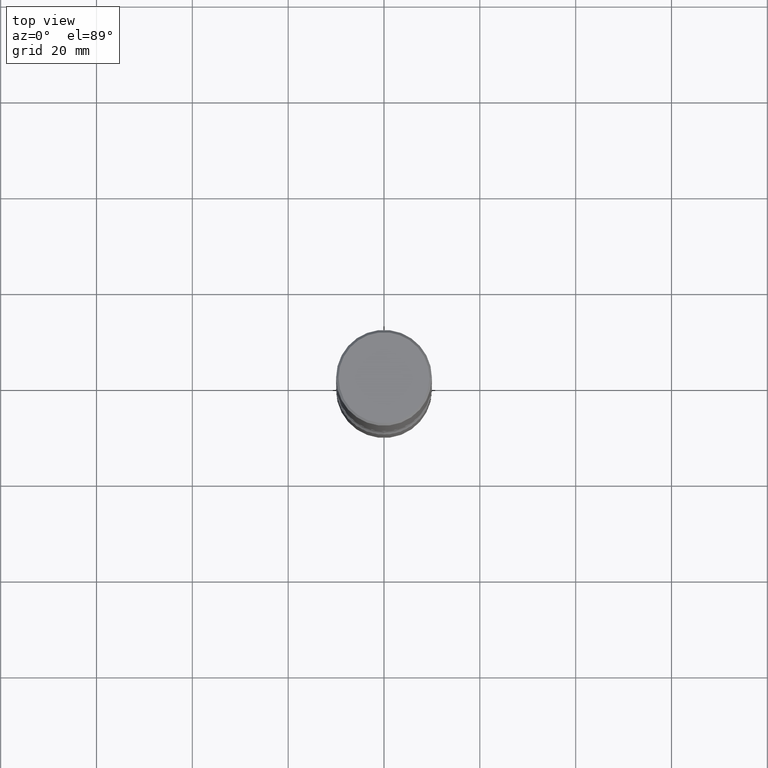
[diagram: clean part render]
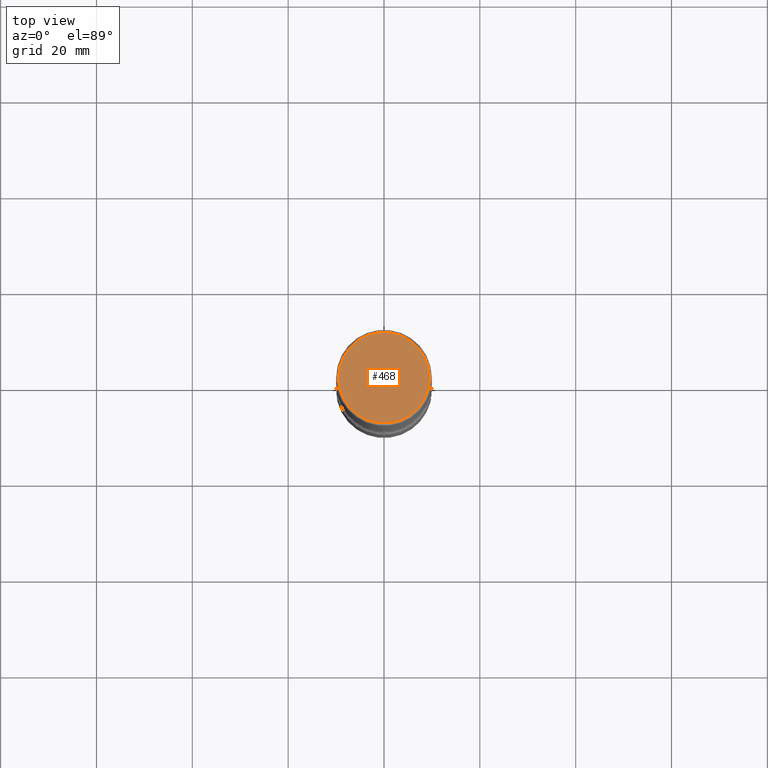
[diagram: same view with one face highlighted and labeled with its STEP entity id]
A machine part, top view. The second image highlights one B-rep face of the part: STEP entity #468.
In plain terms, the highlighted planar face has unit normal (0, -0, -1).
Its self-contained STEP definition (entity closure, byte-faithful):
#8 = AXIS2_PLACEMENT_3D ( 'NONE', #211, #200, #552 ) ;
#16 = CIRCLE ( 'NONE', #354, 0.3736999999999999211 ) ;
#41 = EDGE_LOOP ( 'NONE', ( #379, #350 ) ) ;
#59 = CARTESIAN_POINT ( 'NONE',  ( 0.3736999999999999211, -2.667287895133367964E-15, 8.537024980219274507E-18 ) ) ;
#71 = DIRECTION ( 'NONE',  ( -2.445468806185136597E-29, 3.491481338843145583E-15, 1.000000000000000000 ) ) ;
#80 = FACE_OUTER_BOUND ( 'NONE', #41, .T. ) ;
#102 = VERTEX_POINT ( 'NONE', #59 ) ;
#151 = CARTESIAN_POINT ( 'NONE',  ( -2.087702828670439639E-46, 2.980686340760894400E-32, 8.537024980200822558E-18 ) ) ;
#153 = DIRECTION ( 'NONE',  ( 1.000000000000000000, -6.982962677686266711E-15, 4.876212485538976239E-29 ) ) ;
#200 = DIRECTION ( 'NONE',  ( 2.438088387897960049E-29, -3.491481338843145188E-15, -1.000000000000000000 ) ) ;
#211 = CARTESIAN_POINT ( 'NONE',  ( 2.609533152651356620E-15, 0.3736999999999999211, -1.300498063835582814E-15 ) ) ;
#212 = EDGE_CURVE ( 'NONE', #102, #301, #16, .T. ) ;
#289 = DIRECTION ( 'NONE',  ( 1.000000000000000000, -6.982962677686266711E-15, 4.876212485538976239E-29 ) ) ;
#301 = VERTEX_POINT ( 'NONE', #546 ) ;
#309 = EDGE_CURVE ( 'NONE', #301, #102, #343, .T. ) ;
#343 = CIRCLE ( 'NONE', #369, 0.3736999999999999211 ) ;
#350 = ORIENTED_EDGE ( 'NONE', *, *, #212, .T. ) ;
#354 = AXIS2_PLACEMENT_3D ( 'NONE', #548, #372, #289 ) ;
#369 = AXIS2_PLACEMENT_3D ( 'NONE', #151, #71, #153 ) ;
#372 = DIRECTION ( 'NONE',  ( -2.445468806185136597E-29, 3.491481338843145583E-15, 1.000000000000000000 ) ) ;
#379 = ORIENTED_EDGE ( 'NONE', *, *, #309, .T. ) ;
#424 = PLANE ( 'NONE',  #8 ) ;
#468 = ADVANCED_FACE ( 'NONE', ( #80 ), #424, .F. ) ;
#546 = CARTESIAN_POINT ( 'NONE',  ( -0.3736999999999999211, 2.644447966039788269E-15, 8.537024980182450727E-18 ) ) ;
#548 = CARTESIAN_POINT ( 'NONE',  ( -2.087702828670439639E-46, 2.980686340760894400E-32, 8.537024980200822558E-18 ) ) ;
#552 = DIRECTION ( 'NONE',  ( -1.000000000000000000, 6.982962677686265922E-15, -4.876176775795935793E-29 ) ) ;